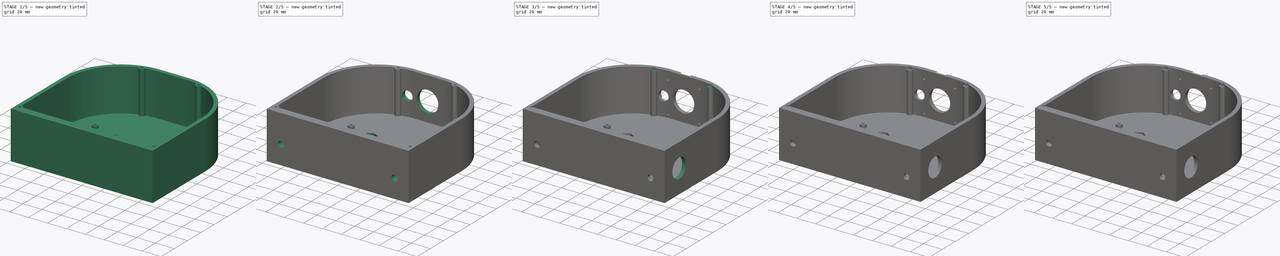
[diagram: build sequence overview — one tinted view per stage of 5, left to right]
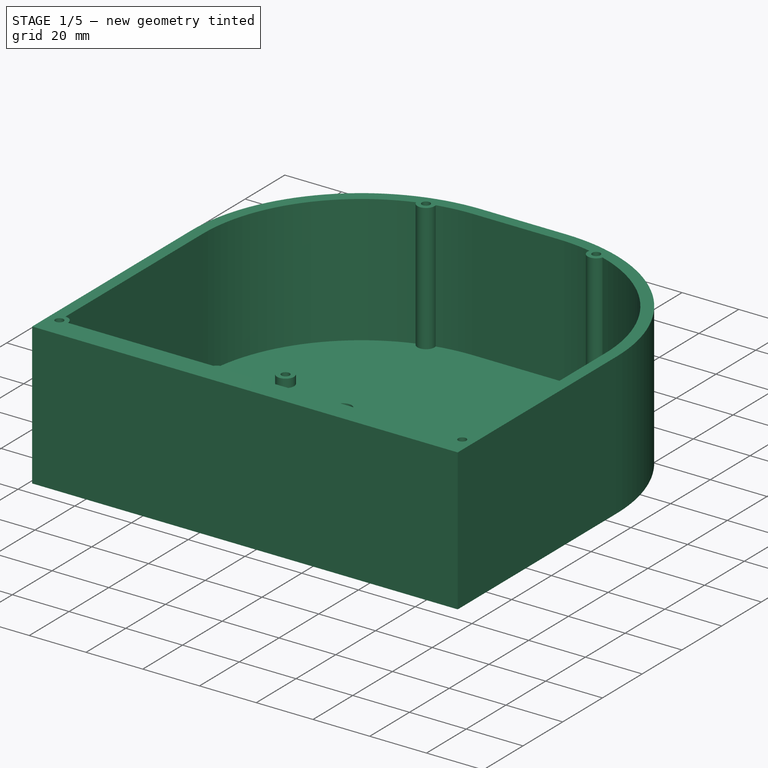
[diagram: stage 1 of 5 — iso view after this stage's code; geometry added in this stage tinted green]
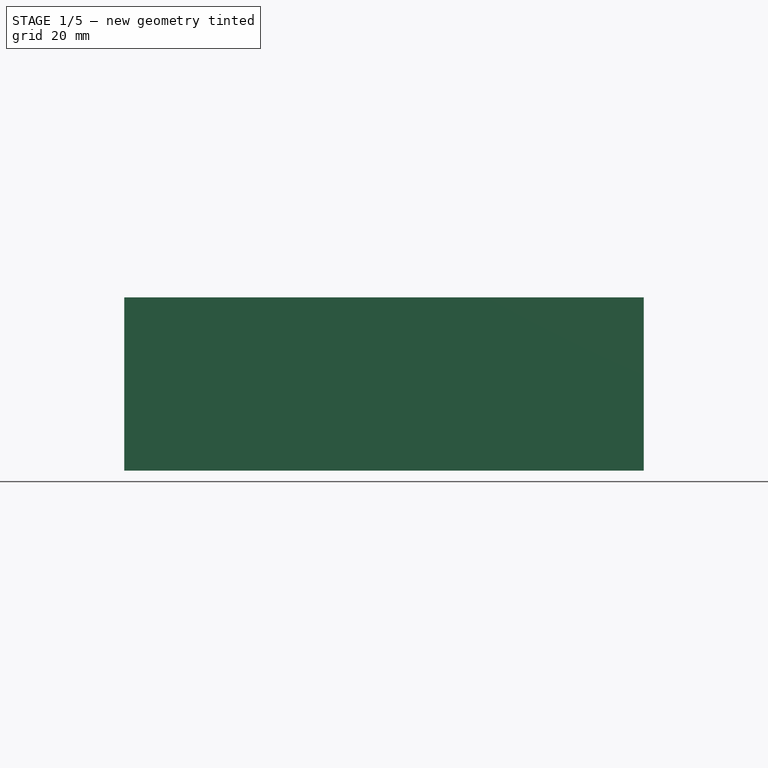
[diagram: stage 1 of 5 — front view after this stage's code; geometry added in this stage tinted green]
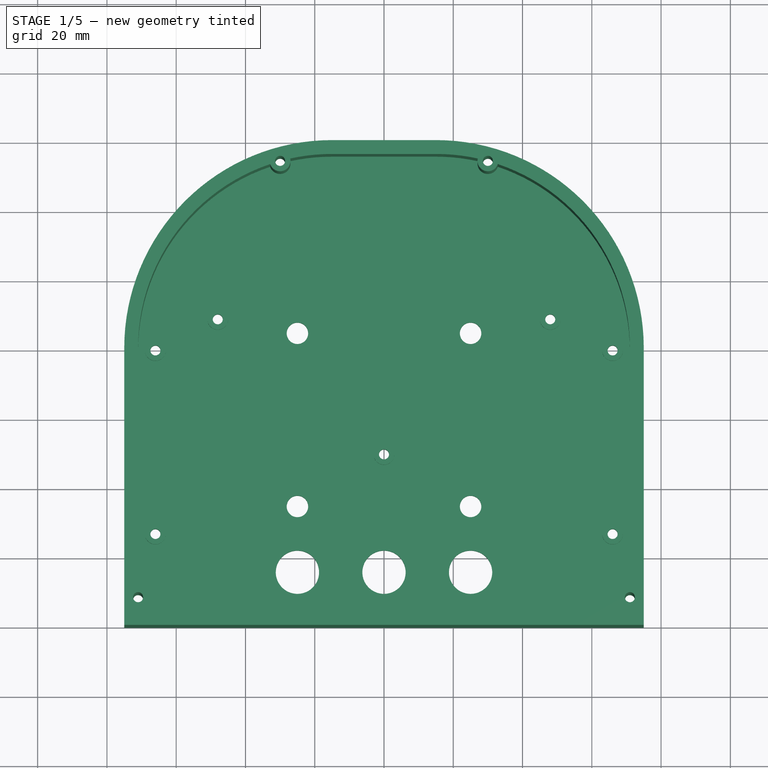
[diagram: stage 1 of 5 — top view after this stage's code; geometry added in this stage tinted green]
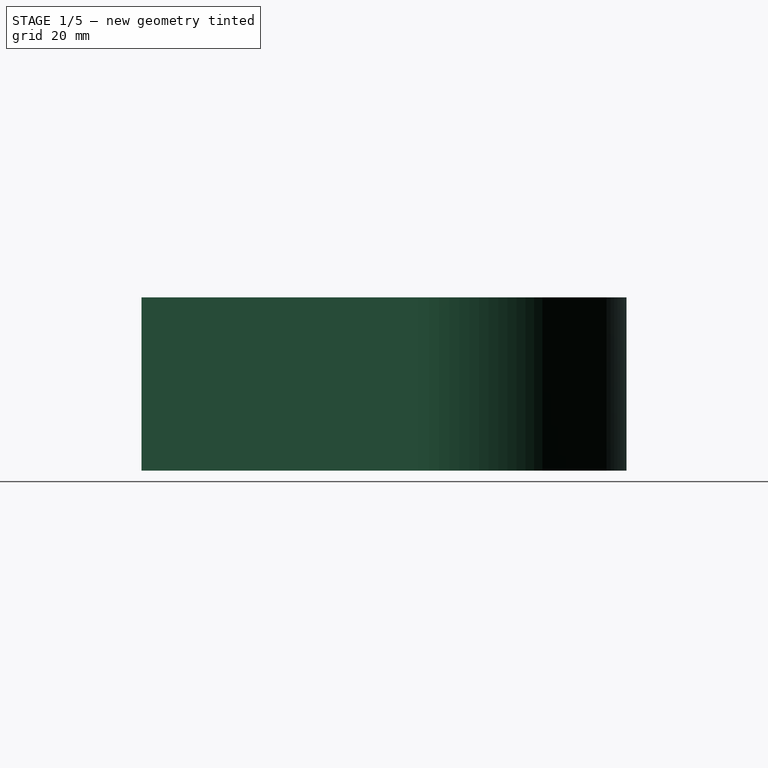
[diagram: stage 1 of 5 — right view after this stage's code; geometry added in this stage tinted green]
FCSTD DOCUMENT  (FreeCAD 0.20R)
Label: T07_threaded_enclosure
License: All rights reserved
LicenseURL: http://en.wikipedia.org/wiki/All_rights_reserved
objects: Sketcher::SketchObject×16, PartDesign::Pocket×12, PartDesign::Pad×4, PartDesign::Chamfer×2, PartDesign::Body×2
note: 54 computed .brp shape members not serialized (recipe doc carries the construction recipe); baked Part::Feature solids carry a one-line shape summary decoded from their .brp

FEATURE [Sketcher::SketchObject] Sketch
  FullyConstrained = true
  MapMode = 5
  Support = -> [XY_Plane]
  sketch-geometry (6):
    g0: ArcOfCircle CenterX=-15 CenterY=80 CenterZ=0 NormalX=0 NormalY=0 NormalZ=1 AngleXU=0 Radius=60 StartAngle=1.5708 EndAngle=3.14159
    g1: ArcOfCircle CenterX=15 CenterY=80 CenterZ=0 NormalX=0 NormalY=0 NormalZ=1 AngleXU=0 Radius=60 StartAngle=0 EndAngle=1.5708
    g2: LineSegment StartX=-75 StartY=80 StartZ=0 EndX=-75 EndY=0 EndZ=0
    g3: LineSegment StartX=-75 StartY=0 StartZ=0 EndX=75 EndY=0 EndZ=0
    g4: LineSegment StartX=75 StartY=0 StartZ=0 EndX=75 EndY=80 EndZ=0
    g5: LineSegment StartX=15 StartY=140 StartZ=0 EndX=-15 EndY=140 EndZ=0
  constraints (14):
    c: Tangent(g0,g2) = -1.5708
    c: Coincident(g2,g3)
    c: PointOnObject(g3,g-1)
    c: Coincident(g3,g4)
    c: Tangent(g1,g5) = -1.5708
    c: Symmetric(g0,g1,g-2)
    c: Symmetric(g2,g3,g-2)
    c: Tangent(g4,g1) = -1.5708
    c: Tangent(g5,g0) = -1.5708
    c: Vertical(g2)
    c: Equal(g0,g1)
    c: DistanceX(g3,g3) = 150
    c: DistanceY(g-1,g0) = 140
    c: Radius(g0) = 60
FEATURE [PartDesign::Pad] Pad
  Direction = (0,0,1)
  Length = 50
  Length2 = 10
  Profile = -> Sketch
  ReferenceAxis = -> Sketch [N_Axis]
  Type = 0
FEATURE [Sketcher::SketchObject] Sketch001
  FullyConstrained = true
  MapMode = 5
  Placement = pos=(0,0,50) rot=(0,0,1;0rad)
  Support = -> [Pad]
  sketch-geometry (12):
    g0: ArcOfCircle CenterX=-15 CenterY=80 CenterZ=0 NormalX=0 NormalY=0 NormalZ=1 AngleXU=0 Radius=56 StartAngle=1.89529 EndAngle=3.14159
    g1: ArcOfCircle CenterX=15 CenterY=80 CenterZ=0 NormalX=0 NormalY=0 NormalZ=1 AngleXU=0 Radius=56 StartAngle=0 EndAngle=1.2463
    g2: LineSegment StartX=-71 StartY=80 StartZ=0 EndX=-71 EndY=11 EndZ=0
    g3: LineSegment StartX=71 StartY=11 StartZ=0 EndX=71 EndY=80 EndZ=0
    g4: ArcOfCircle CenterX=-71 CenterY=8 CenterZ=0 NormalX=0 NormalY=0 NormalZ=1 AngleXU=0 Radius=3 StartAngle=0 EndAngle=1.5708
    g5: ArcOfCircle CenterX=71 CenterY=8 CenterZ=0 NormalX=0 NormalY=0 NormalZ=1 AngleXU=0 Radius=3 StartAngle=1.5708 EndAngle=3.14159
    g6: LineSegment StartX=68 StartY=8 StartZ=0 EndX=-68 EndY=8 EndZ=0
    g7: LineSegment StartX=15 StartY=136 StartZ=0 EndX=-15 EndY=136 EndZ=0
    g8: ArcOfCircle CenterX=-15 CenterY=80 CenterZ=0 NormalX=0 NormalY=0 NormalZ=1 AngleXU=0 Radius=56 StartAngle=1.5708 EndAngle=1.78819
    g9: ArcOfCircle CenterX=15 CenterY=80 CenterZ=0 NormalX=0 NormalY=0 NormalZ=1 AngleXU=0 Radius=56 StartAngle=1.3534 EndAngle=1.5708
    g10: ArcOfCircle CenterX=-30 CenterY=134 CenterZ=0 NormalX=0 NormalY=0 NormalZ=1 AngleXU=0 Radius=3 StartAngle=3.45419 EndAngle=6.51249
    g11: ArcOfCircle CenterX=30 CenterY=134 CenterZ=0 NormalX=0 NormalY=0 NormalZ=1 AngleXU=0 Radius=3 StartAngle=2.91229 EndAngle=5.97059
  constraints (34):
    c: Tangent(g0,g2) = -1.5708
    c: Symmetric(g0,g1,g-2)
    c: Symmetric(g2,g3,g-2)
    c: Equal(g0,g1)
    c: Tangent(g3,g1) = -1.5708
    c: Vertical(g2)
    c: DistanceX(g2,g3) = 142
    c: DistanceY(g-1,g2) = 11
    c: Radius(g0) = 56
    c: Coincident(g4,g2)
    c: Coincident(g5,g3)
    c: Coincident(g6,g5)
    c: Coincident(g6,g4)
    c: Symmetric(g4,g5,g-2)
    c: DistanceX(g2,g4) = 0
    c: Radius(g4) = 3
    c: Horizontal(g6)
    c: DistanceY(g4,g4) = 0
    c: Symmetric(g7,g7,g-2)
    c: Coincident(g8,g0)
    c: Coincident(g9,g1)
    c: Coincident(g9,g7)
    c: Equal(g0,g8)
    c: DistanceY(g-1,g7) = 136
    c: Radius(g10) = 3
    c: Equal(g10,g11)
    c: Symmetric(g10,g11,g-2)
    c: Coincident(g0,g10)
    c: Coincident(g10,g8)
    c: Coincident(g11,g1)
    c: Coincident(g9,g11)
    c: DistanceX(g10,g11) = 60
    c: DistanceY(g-1,g10) = 134
    c: Tangent(g8,g7) = -1.5708
FEATURE [PartDesign::Pocket] Pocket
  BaseFeature = -> Pad
  Direction = (0,0,-1)
  Length = 45
  Length2 = 5
  Profile = -> Sketch001
  ReferenceAxis = -> Sketch001 [N_Axis]
  Type = 0
FEATURE [Sketcher::SketchObject] Sketch002
  FullyConstrained = true
  MapMode = 5
  Placement = pos=(0,0,5) rot=(0,0,1;0rad)
  Support = -> [Pocket]
  sketch-geometry (7):
    g0: Circle CenterX=0 CenterY=50 CenterZ=0 NormalX=0 NormalY=0 NormalZ=1 AngleXU=0 Radius=3
    g1: Circle CenterX=-66 CenterY=27 CenterZ=0 NormalX=0 NormalY=0 NormalZ=1 AngleXU=0 Radius=3
    g2: Circle CenterX=66 CenterY=27 CenterZ=0 NormalX=0 NormalY=0 NormalZ=1 AngleXU=0 Radius=3
    g3: Circle CenterX=-66 CenterY=80 CenterZ=0 NormalX=0 NormalY=0 NormalZ=1 AngleXU=0 Radius=3
    g4: Circle CenterX=-48 CenterY=89 CenterZ=0 NormalX=0 NormalY=0 NormalZ=1 AngleXU=0 Radius=3
    g5: Circle CenterX=48 CenterY=89 CenterZ=0 NormalX=0 NormalY=0 NormalZ=1 AngleXU=0 Radius=3
    g6: Circle CenterX=66 CenterY=80 CenterZ=0 NormalX=0 NormalY=0 NormalZ=1 AngleXU=0 Radius=3
  constraints (18):
    c: PointOnObject(g0,g-2)
    c: Equal(g4,g5)
    c: Equal(g4,g3)
    c: Equal(g3,g1)
    c: Equal(g5,g6)
    c: Equal(g6,g2)
    c: Equal(g4,g0)
    c: Diameter(g4) = 6
    c: Symmetric(g4,g5,g-2)
    c: Symmetric(g3,g6,g-2)
    c: Symmetric(g1,g2,g-2)
    c: DistanceX(g3,g0) = 66
    c: DistanceX(g4,g0) = 48
    c: DistanceX(g1,g0) = 66
    c: DistanceY(g1,g0) = 23
    c: DistanceY(g0,g3) = 30
    c: DistanceY(g0,g4) = 39
    c: DistanceY(g-1,g0) = 50
FEATURE [PartDesign::Pad] Pad001
  BaseFeature = -> Pocket
  Direction = (0,0,1)
  Length = 3
  Length2 = 10
  Profile = -> Sketch002
  ReferenceAxis = -> Sketch002 [N_Axis]
  Type = 0
FEATURE [Sketcher::SketchObject] Sketch003
  FullyConstrained = true
  MapMode = 5
  Placement = pos=(0,0,5) rot=(0,0,1;0rad)
  Support = -> [Pad001]
  sketch-geometry (18):
    g0: Circle CenterX=0 CenterY=50 CenterZ=0 NormalX=0 NormalY=0 NormalZ=1 AngleXU=0 Radius=1.45
    g1: Circle CenterX=-66 CenterY=27 CenterZ=0 NormalX=0 NormalY=0 NormalZ=1 AngleXU=0 Radius=1.45
    g2: Circle CenterX=-66 CenterY=80 CenterZ=0 NormalX=0 NormalY=0 NormalZ=1 AngleXU=0 Radius=1.45
    g3: Circle CenterX=-48 CenterY=89 CenterZ=0 NormalX=0 NormalY=0 NormalZ=1 AngleXU=0 Radius=1.45
    g4: Circle CenterX=48 CenterY=89 CenterZ=0 NormalX=0 NormalY=0 NormalZ=1 AngleXU=0 Radius=1.45
    g5: Circle CenterX=66 CenterY=80 CenterZ=0 NormalX=0 NormalY=0 NormalZ=1 AngleXU=0 Radius=1.45
    g6: Circle CenterX=66 CenterY=27 CenterZ=0 NormalX=0 NormalY=0 NormalZ=1 AngleXU=0 Radius=1.45
    g7: Circle CenterX=-25 CenterY=85 CenterZ=0 NormalX=0 NormalY=0 NormalZ=1 AngleXU=0 Radius=3.1
    g8: Circle CenterX=25 CenterY=85 CenterZ=0 NormalX=0 NormalY=0 NormalZ=1 AngleXU=0 Radius=3.1
    g9: Circle CenterX=-25 CenterY=35 CenterZ=0 NormalX=0 NormalY=0 NormalZ=1 AngleXU=0 Radius=3.1
    g10: Circle CenterX=25 CenterY=35 CenterZ=0 NormalX=0 NormalY=0 NormalZ=1 AngleXU=0 Radius=3.1
    g11: Circle CenterX=-71 CenterY=8 CenterZ=0 NormalX=0 NormalY=0 NormalZ=1 AngleXU=0 Radius=1.45
    g12: Circle CenterX=71 CenterY=8 CenterZ=0 NormalX=0 NormalY=0 NormalZ=1 AngleXU=0 Radius=1.45
    g13: Circle CenterX=-30 CenterY=134 CenterZ=0 NormalX=0 NormalY=0 NormalZ=1 AngleXU=0 Radius=1.45
    g14: Circle CenterX=30 CenterY=134 CenterZ=0 NormalX=0 NormalY=0 NormalZ=1 AngleXU=0 Radius=1.45
    g15: Circle CenterX=0 CenterY=16 CenterZ=0 NormalX=0 NormalY=0 NormalZ=1 AngleXU=0 Radius=6.25
    g16: Circle CenterX=25 CenterY=16 CenterZ=0 NormalX=0 NormalY=0 NormalZ=1 AngleXU=0 Radius=6.25
    g17: Circle CenterX=-25 CenterY=16 CenterZ=0 NormalX=0 NormalY=0 NormalZ=1 AngleXU=0 Radius=6.25
  constraints (46):
    c: PointOnObject(g0,g-2)
    c: Symmetric(g3,g4,g-2)
    c: Symmetric(g2,g5,g-2)
    c: Symmetric(g1,g6,g-2)
    c: Equal(g3,g4)
    c: Equal(g3,g2)
    c: Equal(g2,g1)
    c: Equal(g4,g5)
    c: Equal(g5,g6)
    c: Equal(g3,g0)
    c: Diameter(g3) = 2.9
    c: DistanceX(g1,g0) = 66
    c: DistanceX(g2,g0) = 66
    c: DistanceX(g3,g0) = 48
    c: DistanceY(g1,g0) = 23
    c: DistanceY(g0,g2) = 30
    c: DistanceY(g0,g3) = 39
    c: DistanceY(g-1,g0) = 50
    c: Symmetric(g9,g10,g-2)
    c: Symmetric(g7,g8,g-2)
    c: Equal(g9,g7)
    c: Equal(g7,g8)
    c: Equal(g8,g10)
    c: DistanceX(g9,g10) = 50
    c: DistanceX(g7,g8) = 50
    c: Diameter(g9) = 6.2
    c: DistanceY(g9,g7) = 50
    c: DistanceY(g-1,g9) = 35
    c: Symmetric(g13,g14,g-2)
    c: Symmetric(g11,g12,g-2)
    c: DistanceY(g-1,g11) = 8
    c: DistanceY(g-1,g13) = 134
    c: DistanceX(g13,g14) = 60
    c: DistanceX(g11,g12) = 142
    c: Equal(g11,g12)
    c: Equal(g11,g13)
    c: Equal(g13,g14)
    c: Equal(g3,g11)
    c: PointOnObject(g15,g-2)
    c: Symmetric(g17,g16,g-2)
    c: Diameter(g17) = 12.5
    c: Equal(g17,g15)
    c: Equal(g15,g16)
    c: DistanceY(g15,g17) = 0
    c: DistanceY(g-1,g15) = 16
    c: DistanceX(g17,g16) = 50
FEATURE [PartDesign::Pocket] Pocket001
  BaseFeature = -> Pad001
  Direction = (0,0,-1)
  Length = 5
  Length2 = 5
  Midplane = true
  Profile = -> Sketch003
  ReferenceAxis = -> Sketch003 [N_Axis]
  Type = 1
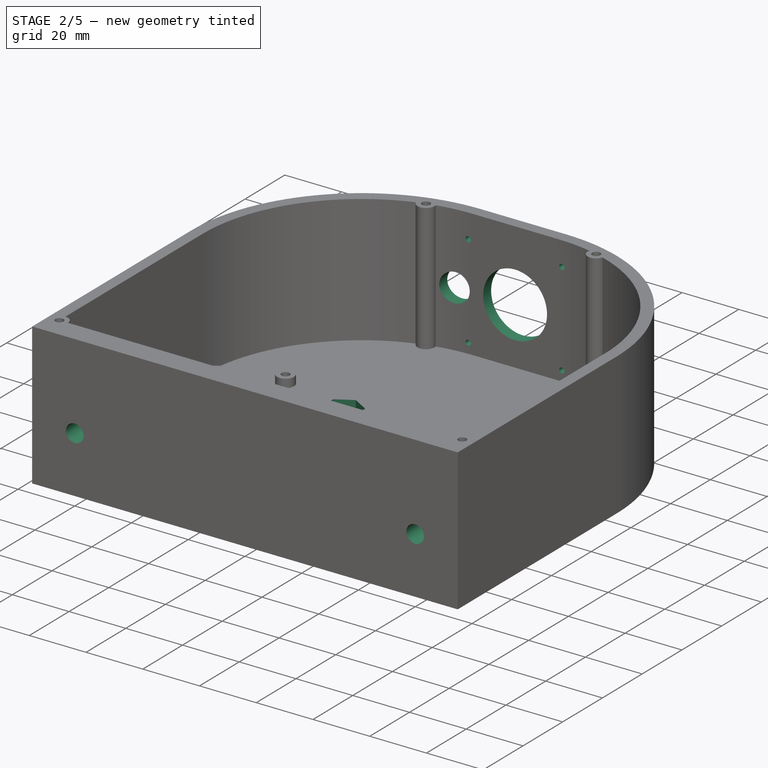
[diagram: stage 2 of 5 — iso view after this stage's code; geometry added in this stage tinted green]
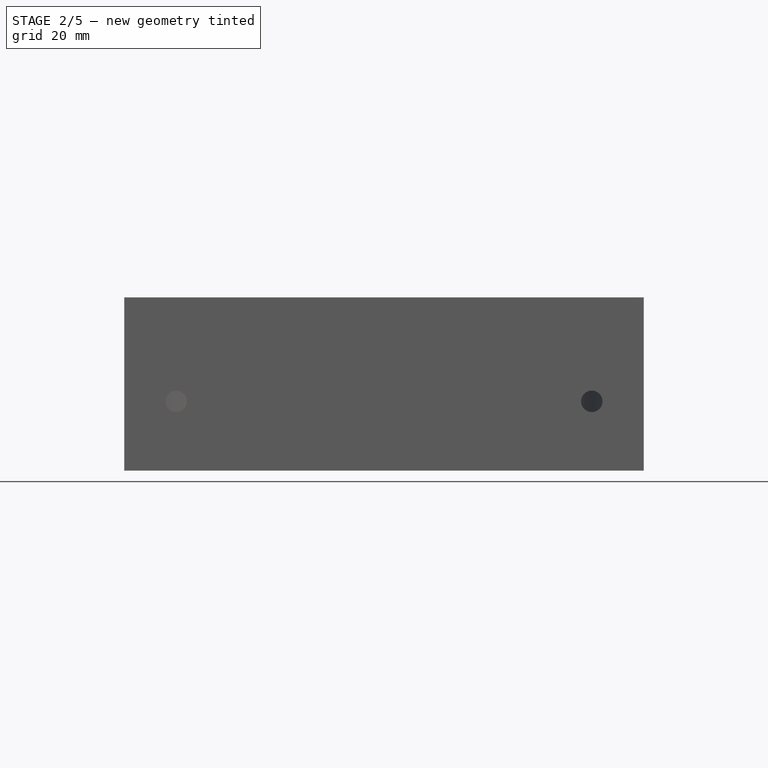
[diagram: stage 2 of 5 — front view after this stage's code; geometry added in this stage tinted green]
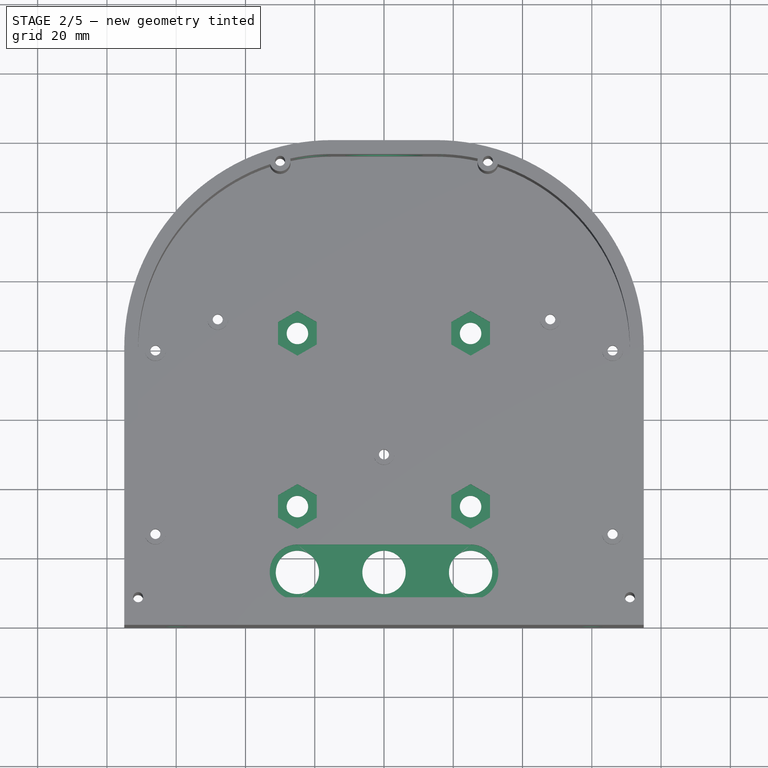
[diagram: stage 2 of 5 — top view after this stage's code; geometry added in this stage tinted green]
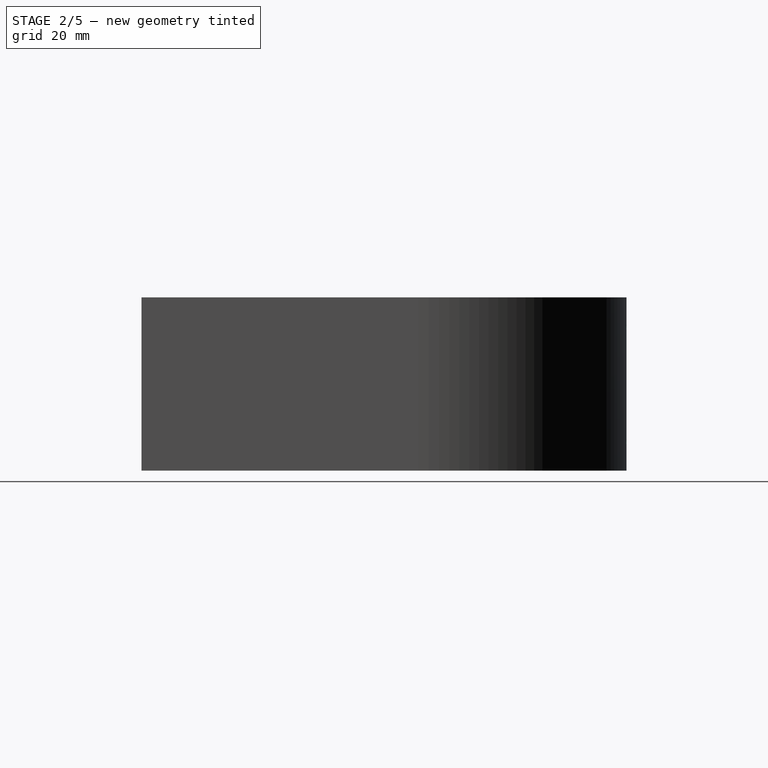
[diagram: stage 2 of 5 — right view after this stage's code; geometry added in this stage tinted green]
FEATURE [Sketcher::SketchObject] Sketch004
  FullyConstrained = true
  MapMode = 5
  Placement = pos=(0,0,5) rot=(0,0,1;0rad)
  Support = -> [Pocket001]
  sketch-geometry (32):
    g0: LineSegment StartX=-19.4 StartY=38.2332 StartZ=0 EndX=-25 EndY=41.4663 EndZ=0
    g1: LineSegment StartX=-25 StartY=41.4663 StartZ=0 EndX=-30.6 EndY=38.2332 EndZ=0
    g2: LineSegment StartX=-30.6 StartY=38.2332 StartZ=0 EndX=-30.6 EndY=31.7668 EndZ=0
    g3: LineSegment StartX=-30.6 StartY=31.7668 StartZ=0 EndX=-25 EndY=28.5337 EndZ=0
    g4: LineSegment StartX=-25 StartY=28.5337 StartZ=0 EndX=-19.4 EndY=31.7668 EndZ=0
    g5: LineSegment StartX=-19.4 StartY=31.7668 StartZ=0 EndX=-19.4 EndY=38.2332 EndZ=0
    g6: Circle CenterX=-25 CenterY=35 CenterZ=0 NormalX=0 NormalY=0 NormalZ=1 AngleXU=0 Radius=6.46632
    g7: LineSegment StartX=30.6 StartY=31.7668 StartZ=0 EndX=30.6 EndY=38.2332 EndZ=0
    g8: LineSegment StartX=30.6 StartY=38.2332 StartZ=0 EndX=25 EndY=41.4663 EndZ=0
    g9: LineSegment StartX=25 StartY=41.4663 StartZ=0 EndX=19.4 EndY=38.2332 EndZ=0
    g10: LineSegment StartX=19.4 StartY=38.2332 StartZ=0 EndX=19.4 EndY=31.7668 EndZ=0
    g11: LineSegment StartX=19.4 StartY=31.7668 StartZ=0 EndX=25 EndY=28.5337 EndZ=0
    g12: LineSegment StartX=25 StartY=28.5337 StartZ=0 EndX=30.6 EndY=31.7668 EndZ=0
    g13: Circle CenterX=25 CenterY=35 CenterZ=0 NormalX=0 NormalY=0 NormalZ=1 AngleXU=0 Radius=6.46632
    g14: LineSegment StartX=-19.4 StartY=81.7668 StartZ=0 EndX=-19.4 EndY=88.2332 EndZ=0
    g15: LineSegment StartX=-19.4 StartY=88.2332 StartZ=0 EndX=-25 EndY=91.4663 EndZ=0
    g16: LineSegment StartX=-25 StartY=91.4663 StartZ=0 EndX=-30.6 EndY=88.2332 EndZ=0
    g17: LineSegment StartX=-30.6 StartY=88.2332 StartZ=0 EndX=-30.6 EndY=81.7668 EndZ=0
    g18: LineSegment StartX=-30.6 StartY=81.7668 StartZ=0 EndX=-25 EndY=78.5337 EndZ=0
    g19: LineSegment StartX=-25 StartY=78.5337 StartZ=0 EndX=-19.4 EndY=81.7668 EndZ=0
    g20: Circle CenterX=-25 CenterY=85 CenterZ=0 NormalX=0 NormalY=0 NormalZ=1 AngleXU=0 Radius=6.46632
    g21: LineSegment StartX=30.6 StartY=81.7668 StartZ=0 EndX=30.6 EndY=88.2332 EndZ=0
    g22: LineSegment StartX=30.6 StartY=88.2332 StartZ=0 EndX=25 EndY=91.4663 EndZ=0
    g23: LineSegment StartX=25 StartY=91.4663 StartZ=0 EndX=19.4 EndY=88.2332 EndZ=0
    g24: LineSegment StartX=19.4 StartY=88.2332 StartZ=0 EndX=19.4 EndY=81.7668 EndZ=0
    g25: LineSegment StartX=19.4 StartY=81.7668 StartZ=0 EndX=25 EndY=78.5337 EndZ=0
    g26: LineSegment StartX=25 StartY=78.5337 StartZ=0 EndX=30.6 EndY=81.7668 EndZ=0
    g27: Circle CenterX=25 CenterY=85 CenterZ=0 NormalX=0 NormalY=0 NormalZ=1 AngleXU=0 Radius=6.46632
    g28: ArcOfCircle CenterX=-25 CenterY=16 CenterZ=0 NormalX=0 NormalY=0 NormalZ=1 AngleXU=0 Radius=8 StartAngle=1.5708 EndAngle=4.71239
    g29: ArcOfCircle CenterX=25 CenterY=16 CenterZ=0 NormalX=0 NormalY=0 NormalZ=1 AngleXU=0 Radius=8 StartAngle=4.71239 EndAngle=7.85398
    g30: LineSegment StartX=-25 StartY=8 StartZ=0 EndX=25 EndY=8 EndZ=0
    g31: LineSegment StartX=25 StartY=24 StartZ=0 EndX=-25 EndY=24 EndZ=0
  constraints (75):
    c: Coincident(g0,g1)
    c: Coincident(g1,g2)
    c: Coincident(g2,g3)
    c: Coincident(g3,g4)
    c: Coincident(g4,g5)
    c: Coincident(g5,g0)
    c: Equal(g0, g1-g5) x5
    c: PointOnObject(g0,g6)
    c: PointOnObject(g1,g6)
    c: PointOnObject(g2,g6)
    c: PointOnObject(g3,g6)
    c: PointOnObject(g4,g6)
    c: PointOnObject(g5,g6)
    c: Coincident(g7,g8)
    c: Coincident(g8,g9)
    c: Coincident(g9,g10)
    c: Coincident(g10,g11)
    c: Coincident(g11,g12)
    c: Coincident(g12,g7)
    c: Equal(g7, g8-g12) x5
    c: PointOnObject(g7,g13)
    c: PointOnObject(g8,g13)
    c: PointOnObject(g9,g13)
    c: PointOnObject(g10,g13)
    c: PointOnObject(g11,g13)
    c: PointOnObject(g12,g13)
    c: Coincident(g14,g15)
    c: Coincident(g15,g16)
    c: Coincident(g16,g17)
    c: Coincident(g17,g18)
    c: Coincident(g18,g19)
    c: Coincident(g19,g14)
    c: Equal(g14, g15-g19) x5
    c: PointOnObject(g14,g20)
    c: PointOnObject(g15,g20)
    c: PointOnObject(g16,g20)
    c: PointOnObject(g17,g20)
    c: PointOnObject(g18,g20)
    c: PointOnObject(g19,g20)
    c: Coincident(g21,g22)
    c: Coincident(g22,g23)
    c: Coincident(g23,g24)
    c: Coincident(g24,g25)
    c: Coincident(g25,g26)
    c: Coincident(g26,g21)
    c: Equal(g21, g22-g26) x5
    c: PointOnObject(g21,g27)
    c: PointOnObject(g22,g27)
    c: PointOnObject(g23,g27)
    c: PointOnObject(g24,g27)
    c: PointOnObject(g25,g27)
    c: PointOnObject(g26,g27)
    c: Symmetric(g20,g27,g-2)
    c: Symmetric(g6,g13,g-2)
    c: Equal(g6,g20)
    c: Equal(g20,g27)
    c: Equal(g27,g13)
    c: Vertical(g17)
    c: Vertical(g24)
    c: Vertical(g2)
    c: Vertical(g10)
    c: DistanceX(g20,g27) = 50
    c: DistanceX(g6,g13) = 50
    c: DistanceX(g1,g0) = 11.2
    c: DistanceY(g6,g20) = 50
    c: DistanceY(g-1,g6) = 35
    c: Tangent(g28,g30) = -1.5708
    c: Tangent(g30,g29) = -1.5708
    c: Tangent(g29,g31) = -1.5708
    c: Tangent(g31,g28) = -1.5708
    c: Equal(g28,g29)
    c: DistanceX(g28,g29) = 50
    c: Symmetric(g28,g29,g-2)
    c: DistanceY(g-1,g28) = 16
    c: Diameter(g29) = 16
FEATURE [PartDesign::Pocket] Pocket002
  BaseFeature = -> Pocket001
  Direction = (0,0,-1)
  Length = 3
  Length2 = 5
  Profile = -> Sketch004
  ReferenceAxis = -> Sketch004 [N_Axis]
  Type = 0
FEATURE [Sketcher::SketchObject] Sketch005
  FullyConstrained = true
  MapMode = 5
  Placement = pos=(0,140,0) rot=(0,0.707107,0.707107;3.14159rad)
  Support = -> [Pocket002]
  sketch-geometry (6):
    g0: Circle CenterX=0 CenterY=25 CenterZ=0 NormalX=0 NormalY=0 NormalZ=1 AngleXU=0 Radius=11.25
    g1: Circle CenterX=-16.5 CenterY=41.5 CenterZ=0 NormalX=0 NormalY=0 NormalZ=1 AngleXU=0 Radius=0.95
    g2: Circle CenterX=16.5 CenterY=41.5 CenterZ=0 NormalX=0 NormalY=0 NormalZ=1 AngleXU=0 Radius=0.95
    g3: Circle CenterX=-16.5 CenterY=8.5 CenterZ=0 NormalX=0 NormalY=0 NormalZ=1 AngleXU=0 Radius=0.95
    g4: Circle CenterX=16.5 CenterY=8.5 CenterZ=0 NormalX=0 NormalY=0 NormalZ=1 AngleXU=0 Radius=0.95
    g5: Circle CenterX=21 CenterY=25 CenterZ=0 NormalX=0 NormalY=0 NormalZ=1 AngleXU=0 Radius=5
  constraints (16):
    c: PointOnObject(g0,g-2)
    c: Diameter(g0) = 22.5
    c: DistanceY(g-1,g0) = 25
    c: Symmetric(g1,g2,g-2)
    c: Symmetric(g3,g4,g-2)
    c: DistanceX(g1,g2) = 33
    c: DistanceX(g3,g4) = 33
    c: DistanceY(g3,g1) = 33
    c: DistanceY(g0,g1) = 16.5
    c: Diameter(g1) = 1.9
    c: Equal(g1,g2)
    c: Equal(g1,g3)
    c: Equal(g3,g4)
    c: Diameter(g5) = 10
    c: DistanceX(g0,g5) = 21
    c: DistanceY(g0,g5) = 0
FEATURE [PartDesign::Pocket] Pocket003
  BaseFeature = -> Pocket002
  Direction = (0,-1,2e-16)
  Length = 6
  Length2 = 5
  Profile = -> Sketch005
  ReferenceAxis = -> Sketch005 [N_Axis]
  Type = 0
FEATURE [Sketcher::SketchObject] Sketch006
  FullyConstrained = true
  MapMode = 5
  Placement = pos=(0,0,0) rot=(1,0,0;1.5708rad)
  Support = -> [Pocket003]
  sketch-geometry (2):
    g0: Circle CenterX=-60 CenterY=20 CenterZ=0 NormalX=0 NormalY=0 NormalZ=1 AngleXU=0 Radius=3.1
    g1: Circle CenterX=60 CenterY=20 CenterZ=0 NormalX=0 NormalY=0 NormalZ=1 AngleXU=0 Radius=3.1
  constraints (5):
    c: Symmetric(g0,g1,g-2)
    c: Equal(g0,g1)
    c: Diameter(g0) = 6.2
    c: DistanceX(g0,g1) = 120
    c: DistanceY(g-1,g0) = 20
FEATURE [PartDesign::Pocket] Pocket004
  BaseFeature = -> Pocket003
  Direction = (0,1,-2e-16)
  Length = 10
  Length2 = 5
  Profile = -> Sketch006
  ReferenceAxis = -> Sketch006 [N_Axis]
  Type = 0
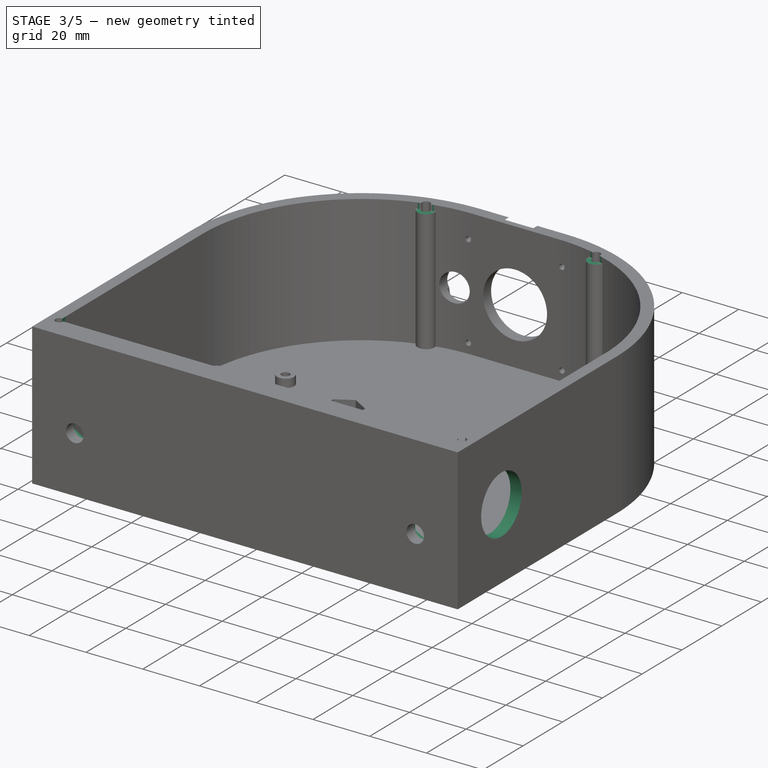
[diagram: stage 3 of 5 — iso view after this stage's code; geometry added in this stage tinted green]
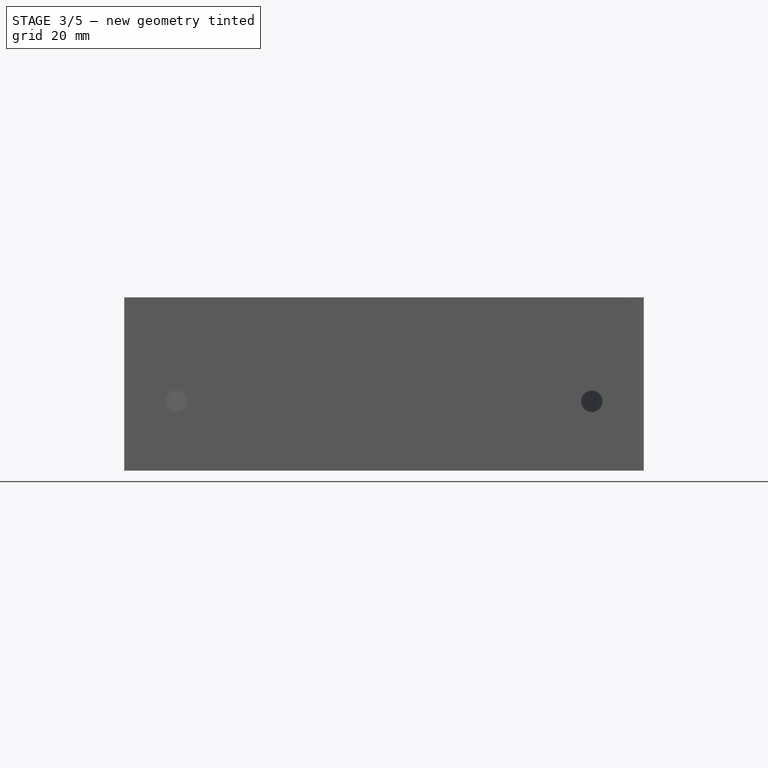
[diagram: stage 3 of 5 — front view after this stage's code; geometry added in this stage tinted green]
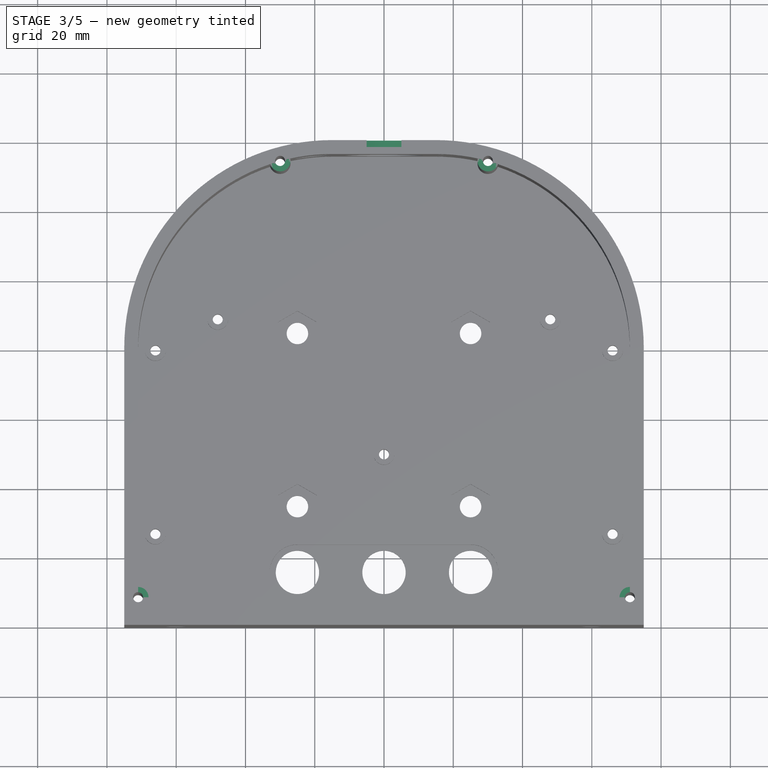
[diagram: stage 3 of 5 — top view after this stage's code; geometry added in this stage tinted green]
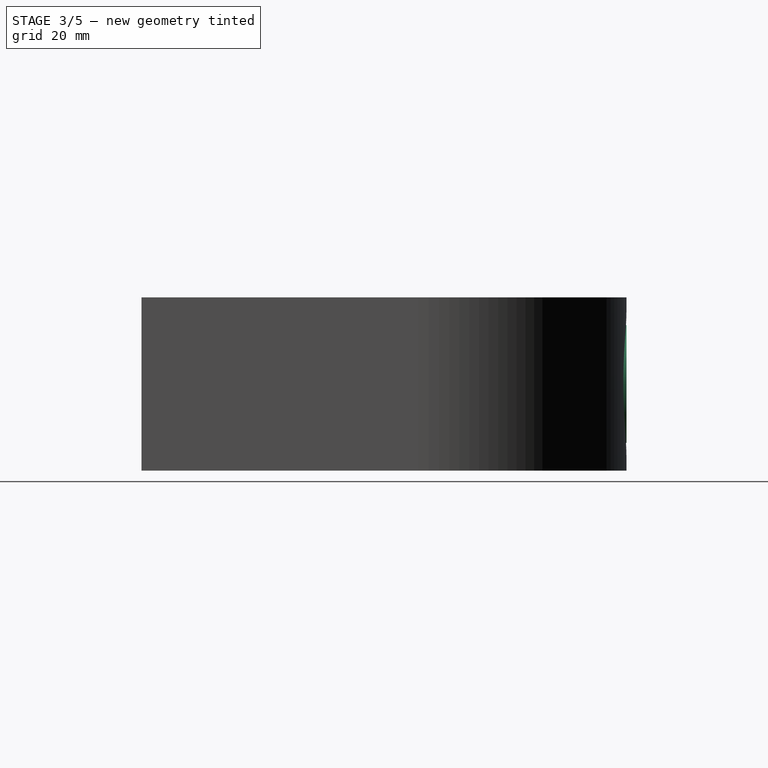
[diagram: stage 3 of 5 — right view after this stage's code; geometry added in this stage tinted green]
FEATURE [Sketcher::SketchObject] Sketch007
  FullyConstrained = true
  MapMode = 5
  Placement = pos=(0,8,0) rot=(0,0.707107,0.707107;3.14159rad)
  Support = -> [Pocket004]
  sketch-geometry (14):
    g0: LineSegment StartX=-60 StartY=13.5337 StartZ=0 EndX=-54.4 EndY=16.7668 EndZ=0
    g1: LineSegment StartX=-54.4 StartY=16.7668 StartZ=0 EndX=-54.4 EndY=23.2332 EndZ=0
    g2: LineSegment StartX=-54.4 StartY=23.2332 StartZ=0 EndX=-60 EndY=26.4663 EndZ=0
    g3: LineSegment StartX=-60 StartY=26.4663 StartZ=0 EndX=-65.6 EndY=23.2332 EndZ=0
    g4: LineSegment StartX=-65.6 StartY=23.2332 StartZ=0 EndX=-65.6 EndY=16.7668 EndZ=0
    g5: LineSegment StartX=-65.6 StartY=16.7668 StartZ=0 EndX=-60 EndY=13.5337 EndZ=0
    g6: Circle CenterX=-60 CenterY=20 CenterZ=0 NormalX=0 NormalY=0 NormalZ=1 AngleXU=0 Radius=6.46632
    g7: LineSegment StartX=65.6 StartY=16.7668 StartZ=0 EndX=65.6 EndY=23.2332 EndZ=0
    g8: LineSegment StartX=65.6 StartY=23.2332 StartZ=0 EndX=60 EndY=26.4663 EndZ=0
    g9: LineSegment StartX=60 StartY=26.4663 StartZ=0 EndX=54.4 EndY=23.2332 EndZ=0
    g10: LineSegment StartX=54.4 StartY=23.2332 StartZ=0 EndX=54.4 EndY=16.7668 EndZ=0
    g11: LineSegment StartX=54.4 StartY=16.7668 StartZ=0 EndX=60 EndY=13.5337 EndZ=0
    g12: LineSegment StartX=60 StartY=13.5337 StartZ=0 EndX=65.6 EndY=16.7668 EndZ=0
    g13: Circle CenterX=60 CenterY=20 CenterZ=0 NormalX=0 NormalY=0 NormalZ=1 AngleXU=0 Radius=6.46632
  constraints (33):
    c: Coincident(g0,g1)
    c: Coincident(g1,g2)
    c: Coincident(g2,g3)
    c: Coincident(g3,g4)
    c: Coincident(g4,g5)
    c: Coincident(g5,g0)
    c: Equal(g0, g1-g5) x5
    c: PointOnObject(g0,g6)
    c: PointOnObject(g1,g6)
    c: PointOnObject(g2,g6)
    c: PointOnObject(g3,g6)
    c: PointOnObject(g4,g6)
    c: PointOnObject(g5,g6)
    c: Coincident(g7,g8)
    c: Coincident(g8,g9)
    c: Coincident(g9,g10)
    c: Coincident(g10,g11)
    c: Coincident(g11,g12)
    c: Coincident(g12,g7)
    c: Equal(g7, g8-g12) x5
    c: PointOnObject(g7,g13)
    c: PointOnObject(g8,g13)
    c: PointOnObject(g9,g13)
    c: PointOnObject(g10,g13)
    c: PointOnObject(g11,g13)
    c: PointOnObject(g12,g13)
    c: Vertical(g10)
    c: Vertical(g1)
    c: Symmetric(g6,g13,g-2)
    c: DistanceX(g9,g7) = 11.2
    c: DistanceX(g6,g13) = 120
    c: DistanceY(g-1,g6) = 20
    c: Equal(g13,g6)
FEATURE [PartDesign::Pocket] Pocket005
  BaseFeature = -> Pocket004
  Direction = (0,-1,2e-16)
  Length = 4
  Length2 = 5
  Profile = -> Sketch007
  ReferenceAxis = -> Sketch007 [N_Axis]
  Type = 0
FEATURE [Sketcher::SketchObject] Sketch008
  FullyConstrained = true
  MapMode = 5
  Placement = pos=(0,0,50) rot=(0,0,1;0rad)
  Support = -> [Pocket005]
  sketch-geometry (6):
    g0: ArcOfCircle CenterX=-15 CenterY=80 CenterZ=0 NormalX=0 NormalY=0 NormalZ=1 AngleXU=0 Radius=56 StartAngle=1.5708 EndAngle=3.14159
    g1: ArcOfCircle CenterX=15 CenterY=80 CenterZ=0 NormalX=0 NormalY=0 NormalZ=1 AngleXU=0 Radius=56 StartAngle=0 EndAngle=1.5708
    g2: LineSegment StartX=-15 StartY=136 StartZ=0 EndX=15 EndY=136 EndZ=0
    g3: LineSegment StartX=-71 StartY=80 StartZ=0 EndX=-71 EndY=8 EndZ=0
    g4: LineSegment StartX=-71 StartY=8 StartZ=0 EndX=71 EndY=8 EndZ=0
    g5: LineSegment StartX=71 StartY=8 StartZ=0 EndX=71 EndY=80 EndZ=0
  constraints (14):
    c: Tangent(g0,g2) = 1.5708
    c: Tangent(g0,g3) = -1.5708
    c: Coincident(g3,g4)
    c: Coincident(g4,g5)
    c: Vertical(g5)
    c: Symmetric(g3,g4,g-2)
    c: Symmetric(g0,g1,g-2)
    c: Tangent(g5,g1) = -1.5708
    c: Tangent(g2,g1) = 1.5708
    c: Vertical(g3)
    c: DistanceY(g-1,g3) = 8
    c: DistanceY(g-1,g0) = 136
    c: DistanceX(g3,g4) = 142
    c: Radius(g0) = 56
FEATURE [PartDesign::Pocket] Pocket006
  BaseFeature = -> Pocket005
  Direction = (0,0,-1)
  Length = 2
  Length2 = 5
  Profile = -> Sketch008
  ReferenceAxis = -> Sketch008 [N_Axis]
  Type = 0
FEATURE [PartDesign::Body] Body001  label="top"
  Group = -> [Sketch009,Pad002,Sketch010,Pad003,Sketch011,Pocket007,Sketch012,Pocket008,Chamfer,Chamfer001]
  Origin = -> Origin001
  Placement = pos=(0,0,50) rot=(0,0,1;0rad)
  Tip = -> Chamfer001
FEATURE [Sketcher::SketchObject] Sketch013
  FullyConstrained = true
  MapMode = 5
  Placement = pos=(0,140,0) rot=(0,0.707107,0.707107;3.14159rad)
  Support = -> [Pocket006]
  sketch-geometry (2):
    g0: Circle CenterX=0 CenterY=25 CenterZ=0 NormalX=0 NormalY=0 NormalZ=1 AngleXU=0 Radius=17
    g1: Circle CenterX=0 CenterY=25 CenterZ=0 NormalX=0 NormalY=0 NormalZ=1 AngleXU=0 Radius=25.5
  constraints (5):
    c: PointOnObject(g0,g-2)
    c: Coincident(g1,g0)
    c: Diameter(g0) = 34
    c: Diameter(g1) = 51
    c: DistanceY(g-1,g0) = 25
FEATURE [PartDesign::Pocket] Pocket009
  BaseFeature = -> Pocket006
  Direction = (0,-1,2e-16)
  Length = 2
  Length2 = 5
  Profile = -> Sketch013
  ReferenceAxis = -> Sketch013 [N_Axis]
  Type = 0
FEATURE [Sketcher::SketchObject] Sketch014
  FullyConstrained = true
  MapMode = 5
  Placement = pos=(75,0,0) rot=(0.57735,0.57735,0.57735;2.0944rad)
  Support = -> [Pocket009]
  sketch-geometry (1):
    g0: Circle CenterX=22 CenterY=25 CenterZ=0 NormalX=0 NormalY=0 NormalZ=1 AngleXU=0 Radius=10.2
  constraints (3):
    c: Diameter(g0) = 20.4
    c: DistanceY(g-1,g0) = 25
    c: DistanceX(g-1,g0) = 22
FEATURE [PartDesign::Pocket] Pocket010
  BaseFeature = -> Pocket009
  Direction = (-1,0,0)
  Length = 6
  Length2 = 5
  Profile = -> Sketch014
  ReferenceAxis = -> Sketch014 [N_Axis]
  Type = 0
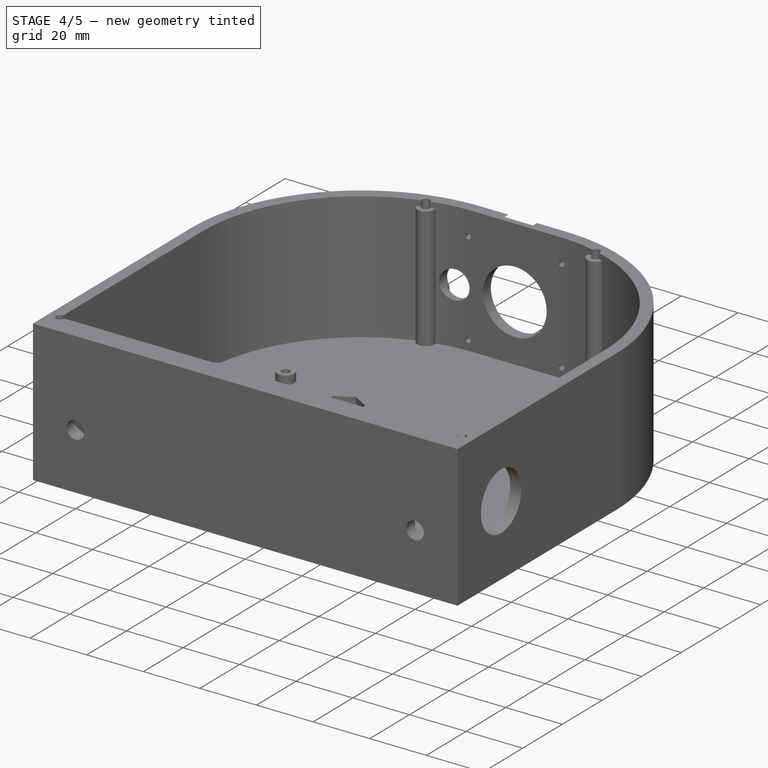
[diagram: stage 4 of 5 — iso view after this stage's code; geometry added in this stage tinted green]
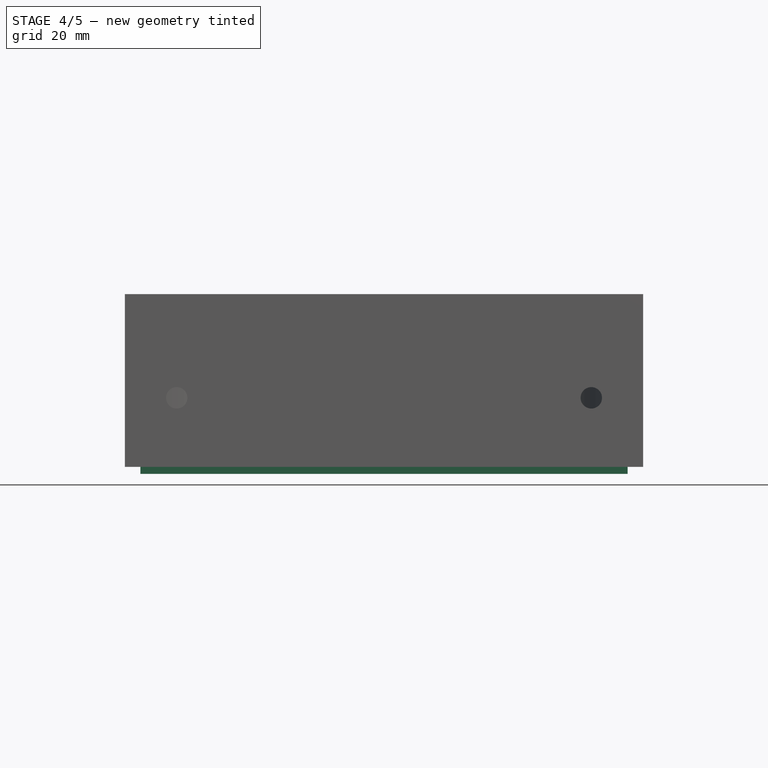
[diagram: stage 4 of 5 — front view after this stage's code; geometry added in this stage tinted green]
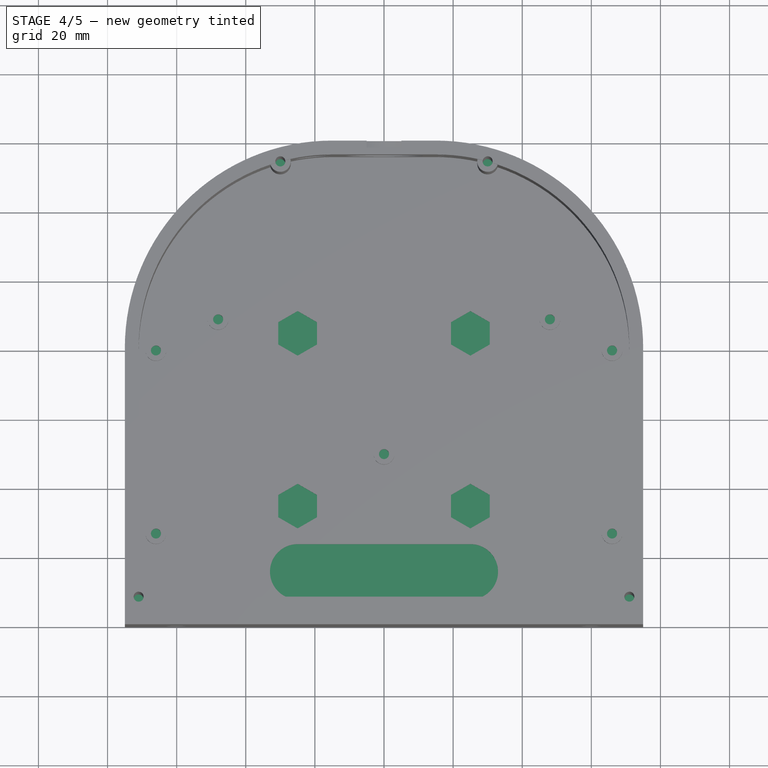
[diagram: stage 4 of 5 — top view after this stage's code; geometry added in this stage tinted green]
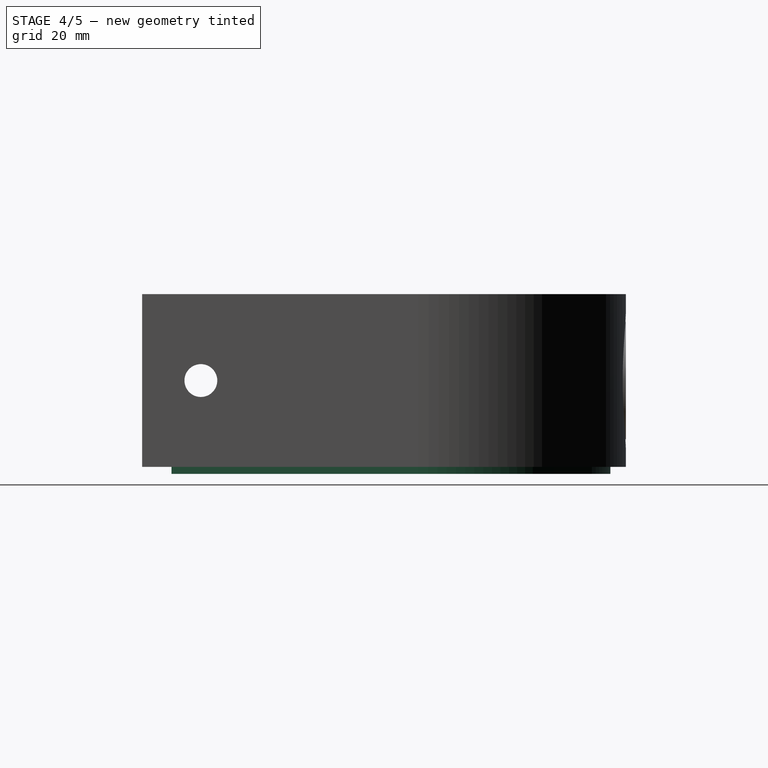
[diagram: stage 4 of 5 — right view after this stage's code; geometry added in this stage tinted green]
FEATURE [Sketcher::SketchObject] Sketch009
  FullyConstrained = true
  MapMode = 5
  Support = -> [XY_Plane001]
  sketch-geometry (6):
    g0: ArcOfCircle CenterX=-15 CenterY=80 CenterZ=0 NormalX=0 NormalY=0 NormalZ=1 AngleXU=0 Radius=60 StartAngle=1.5708 EndAngle=3.14159
    g1: ArcOfCircle CenterX=15 CenterY=80 CenterZ=0 NormalX=0 NormalY=0 NormalZ=1 AngleXU=0 Radius=60 StartAngle=-8.464e-13 EndAngle=1.5708
    g2: LineSegment StartX=-15 StartY=140 StartZ=0 EndX=15 EndY=140 EndZ=0
    g3: LineSegment StartX=-75 StartY=80 StartZ=0 EndX=-75 EndY=0 EndZ=0
    g4: LineSegment StartX=-75 StartY=0 StartZ=0 EndX=75 EndY=0 EndZ=0
    g5: LineSegment StartX=75 StartY=0 StartZ=0 EndX=75 EndY=80 EndZ=0
  constraints (14):
    c: Tangent(g0,g3) = -1.5708
    c: Coincident(g3,g4)
    c: PointOnObject(g4,g-1)
    c: Coincident(g4,g5)
    c: Symmetric(g0,g1,g-2)
    c: Symmetric(g3,g4,g-2)
    c: DistanceX(g3,g4) = 150
    c: Tangent(g2,g0) = 1.5708
    c: Tangent(g2,g1) = 1.5708
    c: Tangent(g5,g1) = -1.5708
    c: DistanceY(g-1,g0) = 140
    c: Equal(g0,g1)
    c: Radius(g0) = 60
    c: Vertical(g3)
FEATURE [PartDesign::Pad] Pad002
  Direction = (0,0,1)
  Length = 3
  Length2 = 10
  Profile = -> Sketch009
  ReferenceAxis = -> Sketch009 [N_Axis]
  Type = 0
FEATURE [Sketcher::SketchObject] Sketch010
  FullyConstrained = true
  MapMode = 5
  Placement = pos=(0,0,0) rot=(1,0,0;3.14159rad)
  Support = -> [Pad002]
  sketch-geometry (6):
    g0: ArcOfCircle CenterX=-15 CenterY=-80 CenterZ=0 NormalX=0 NormalY=0 NormalZ=1 AngleXU=0 Radius=55.5 StartAngle=3.14159 EndAngle=4.71239
    g1: ArcOfCircle CenterX=15 CenterY=-80 CenterZ=0 NormalX=0 NormalY=0 NormalZ=1 AngleXU=0 Radius=55.5 StartAngle=4.71239 EndAngle=6.28319
    g2: LineSegment StartX=-15 StartY=-135.5 StartZ=0 EndX=15 EndY=-135.5 EndZ=0
    g3: LineSegment StartX=-70.5 StartY=-80 StartZ=0 EndX=-70.5 EndY=-8.5 EndZ=0
    g4: LineSegment StartX=-70.5 StartY=-8.5 StartZ=0 EndX=70.5 EndY=-8.5 EndZ=0
    g5: LineSegment StartX=70.5 StartY=-8.5 StartZ=0 EndX=70.5 EndY=-80 EndZ=0
  constraints (14):
    c: Tangent(g0,g3) = 1.5708
    c: Coincident(g3,g4)
    c: Coincident(g4,g5)
    c: Tangent(g2,g0) = -1.5708
    c: Tangent(g2,g1) = -1.5708
    c: Tangent(g5,g1) = 1.5708
    c: Equal(g0,g1)
    c: Symmetric(g0,g1,g-2)
    c: Symmetric(g3,g4,g-2)
    c: Vertical(g3)
    c: DistanceY(g1,g-1) = 135.5
    c: DistanceY(g4,g-1) = 8.5
    c: DistanceX(g3,g4) = 141
    c: Radius(g0) = 55.5
FEATURE [PartDesign::Pad] Pad003
  BaseFeature = -> Pad002
  Direction = (0,0,-1)
  Length = 2
  Length2 = 10
  Profile = -> Sketch010
  ReferenceAxis = -> Sketch010 [N_Axis]
  Type = 0
FEATURE [Sketcher::SketchObject] Sketch015
  FullyConstrained = true
  MapMode = 5
  Placement = pos=(-75,0,0) rot=(0.57735,-0.57735,-0.57735;2.0944rad)
  Support = -> [Pocket010]
  sketch-geometry (1):
    g0: Circle CenterX=-17 CenterY=25 CenterZ=0 NormalX=0 NormalY=0 NormalZ=1 AngleXU=0 Radius=4.75
  constraints (3):
    c: Diameter(g0) = 9.5
    c: DistanceY(g-1,g0) = 25
    c: DistanceX(g0,g-1) = 17
FEATURE [PartDesign::Pocket] Pocket011
  BaseFeature = -> Pocket010
  Direction = (1,0,0)
  Length = 6
  Length2 = 5
  Profile = -> Sketch015
  ReferenceAxis = -> Sketch015 [N_Axis]
  Type = 0
FEATURE [PartDesign::Body] Body
  Group = -> [Sketch,Pad,Sketch001,Pocket,Sketch002,Pad001,Sketch003,Pocket001,Sketch004,Pocket002,Sketch005,Pocket003,Sketch006,Pocket004,Sketch007,Pocket005,Sketch008,Pocket006,Sketch013,Pocket009,Sketch014,Pocket010,Sketch015,Pocket011]
  Origin = -> Origin
  Tip = -> Pocket011
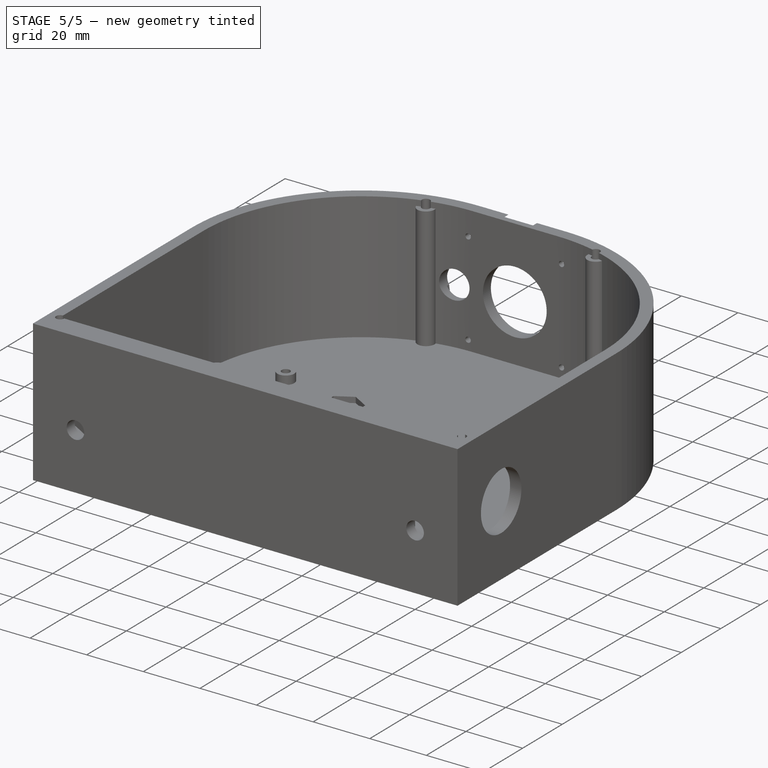
[diagram: stage 5 of 5 — iso view after this stage's code; geometry added in this stage tinted green]
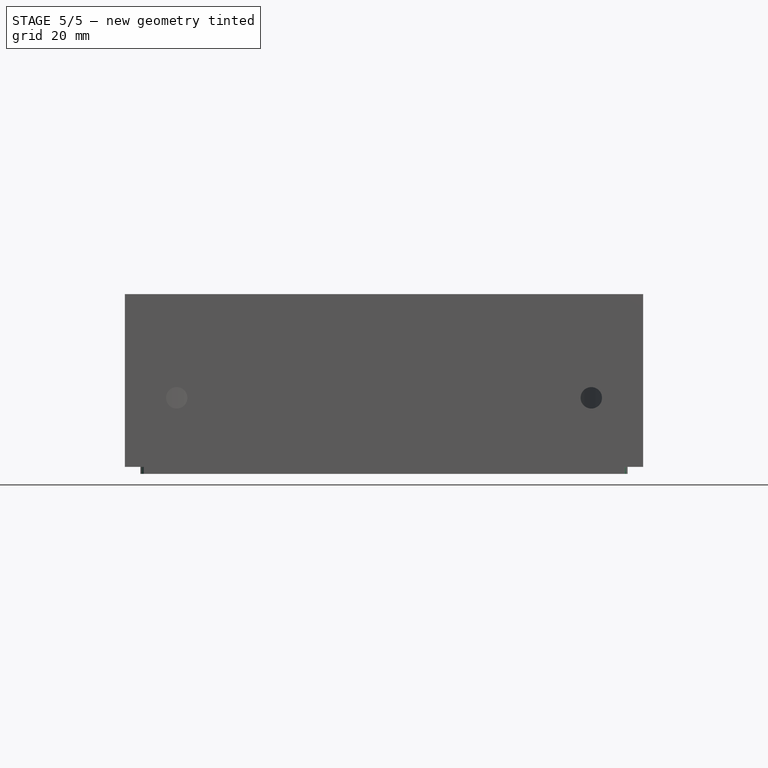
[diagram: stage 5 of 5 — front view after this stage's code; geometry added in this stage tinted green]
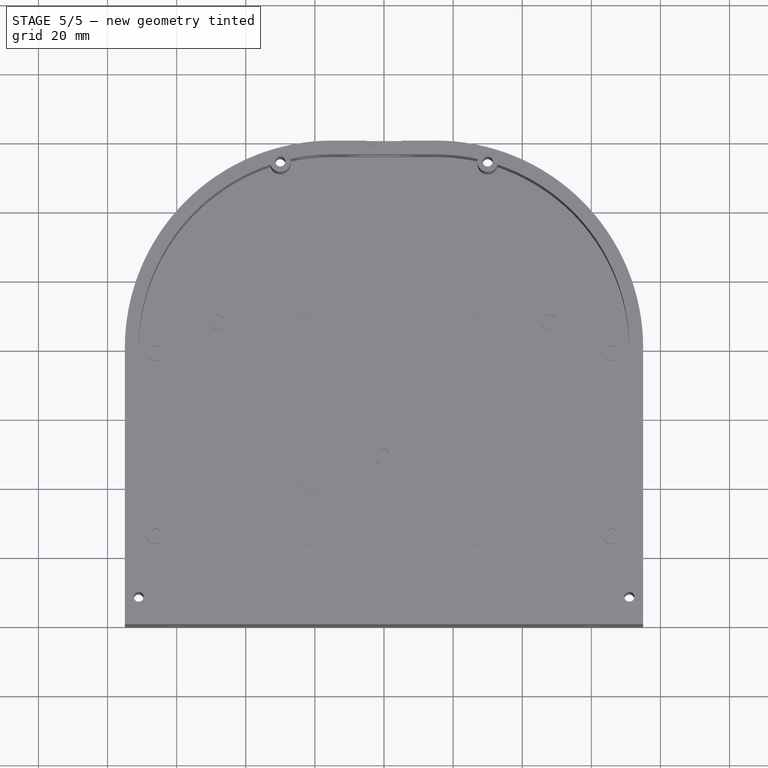
[diagram: stage 5 of 5 — top view after this stage's code; geometry added in this stage tinted green]
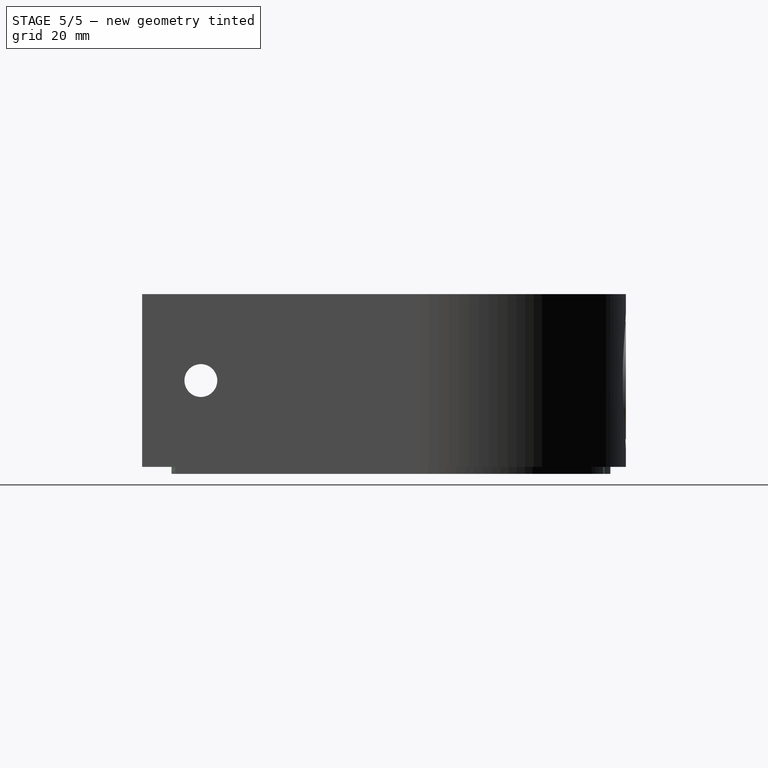
[diagram: stage 5 of 5 — right view after this stage's code; geometry added in this stage tinted green]
FEATURE [Sketcher::SketchObject] Sketch011
  FullyConstrained = true
  MapMode = 5
  Placement = pos=(0,0,3) rot=(0,0,1;0rad)
  Support = -> [Pad003]
  sketch-geometry (4):
    g0: Circle CenterX=-71 CenterY=8 CenterZ=0 NormalX=0 NormalY=0 NormalZ=1 AngleXU=0 Radius=1.6
    g1: Circle CenterX=71 CenterY=8 CenterZ=0 NormalX=0 NormalY=0 NormalZ=1 AngleXU=0 Radius=1.6
    g2: Circle CenterX=-30 CenterY=134 CenterZ=0 NormalX=0 NormalY=0 NormalZ=1 AngleXU=0 Radius=1.6
    g3: Circle CenterX=30 CenterY=134 CenterZ=0 NormalX=0 NormalY=0 NormalZ=1 AngleXU=0 Radius=1.6
  constraints (10):
    c: Symmetric(g0,g1,g-2)
    c: Symmetric(g2,g3,g-2)
    c: DistanceX(g0,g1) = 142
    c: DistanceX(g2,g3) = 60
    c: DistanceY(g-1,g0) = 8
    c: DistanceY(g-1,g2) = 134
    c: Equal(g0,g2)
    c: Equal(g2,g3)
    c: Equal(g0,g1)
    c: Diameter(g0) = 3.2
FEATURE [PartDesign::Pocket] Pocket007
  BaseFeature = -> Pad003
  Direction = (0,0,-1)
  Length = 5
  Length2 = 5
  Profile = -> Sketch011
  ReferenceAxis = -> Sketch011 [N_Axis]
  Type = 1
FEATURE [Sketcher::SketchObject] Sketch012
  FullyConstrained = true
  MapMode = 5
  Placement = pos=(0,0,-2) rot=(1,0,0;3.14159rad)
  Support = -> [Pocket007]
  sketch-geometry (6):
    g0: ArcOfCircle CenterX=-15 CenterY=-80 CenterZ=0 NormalX=0 NormalY=0 NormalZ=1 AngleXU=0 Radius=53.5 StartAngle=3.14159 EndAngle=4.71239
    g1: ArcOfCircle CenterX=15 CenterY=-80 CenterZ=0 NormalX=0 NormalY=0 NormalZ=1 AngleXU=0 Radius=53.5 StartAngle=4.71239 EndAngle=6.28319
    g2: LineSegment StartX=-15 StartY=-133.5 StartZ=0 EndX=15 EndY=-133.5 EndZ=0
    g3: LineSegment StartX=-68.5 StartY=-80 StartZ=0 EndX=-68.5 EndY=-10.5 EndZ=0
    g4: LineSegment StartX=-68.5 StartY=-10.5 StartZ=0 EndX=68.5 EndY=-10.5 EndZ=0
    g5: LineSegment StartX=68.5 StartY=-10.5 StartZ=0 EndX=68.5 EndY=-80 EndZ=0
  constraints (14):
    c: Tangent(g0,g3) = 1.5708
    c: Coincident(g3,g4)
    c: Coincident(g4,g5)
    c: Vertical(g5)
    c: Tangent(g2,g0) = -1.5708
    c: Tangent(g2,g1) = -1.5708
    c: Tangent(g5,g1) = 1.5708
    c: Symmetric(g0,g1,g-2)
    c: Symmetric(g3,g4,g-2)
    c: Equal(g0,g1)
    c: Radius(g0) = 53.5
    c: DistanceY(g4,g-1) = 10.5
    c: DistanceY(g1,g-1) = 133.5
    c: DistanceX(g3,g4) = 137
FEATURE [PartDesign::Pocket] Pocket008
  BaseFeature = -> Pocket007
  Direction = (0,0,1)
  Length = 3
  Length2 = 5
  Profile = -> Sketch012
  ReferenceAxis = -> Sketch012 [N_Axis]
  Type = 0
FEATURE [PartDesign::Chamfer] Chamfer
  Angle = 45
  Base = -> Pocket008 [Edge33,Edge35,Edge36,Edge34]
  BaseFeature = -> Pocket008
  ChamferType = 0
  FlipDirection = false
  Size = 1.6
  Size2 = 1
  SupportTransform = false
  UseAllEdges = false
FEATURE [PartDesign::Chamfer] Chamfer001
  Angle = 45
  Base = -> Chamfer [Edge5,Edge7,Edge3,Edge2,Edge4,Edge6]
  BaseFeature = -> Chamfer
  ChamferType = 0
  FlipDirection = false
  Size = 0.75
  Size2 = 1
  SupportTransform = false
  UseAllEdges = false
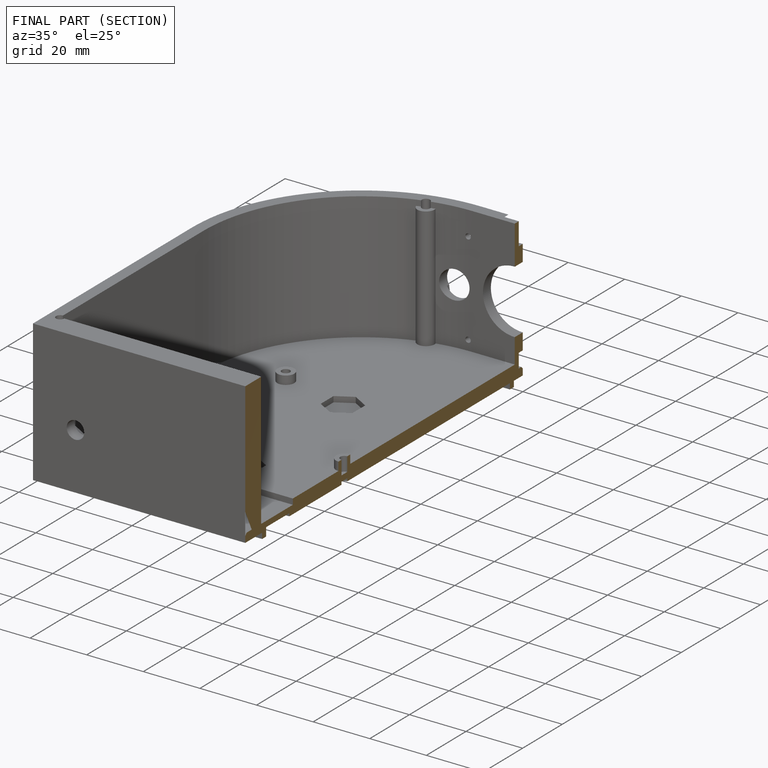
[diagram: finished part — half-section view (interior)]
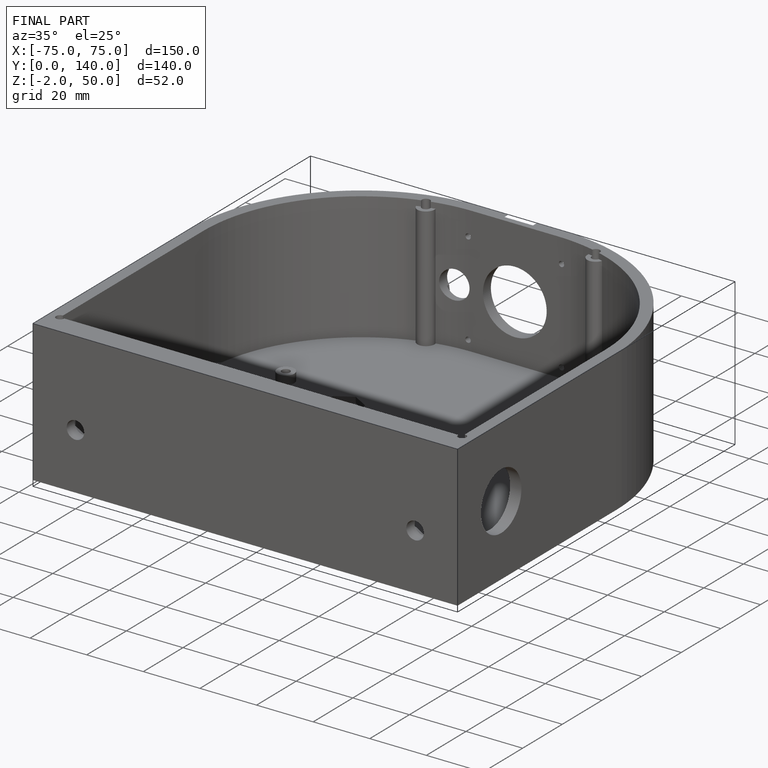
[diagram: finished part — iso view with bounding-box wireframe]
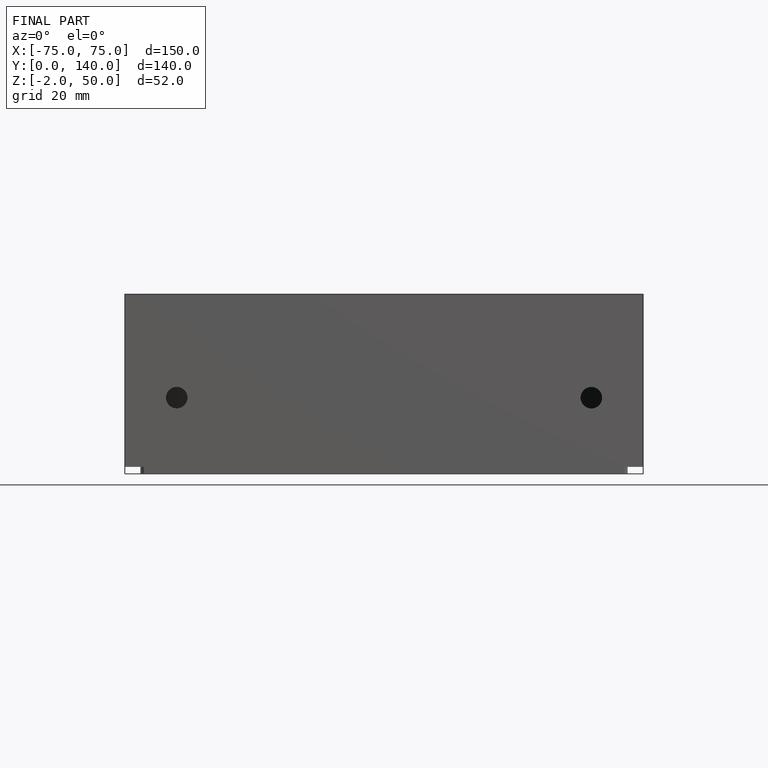
[diagram: finished part — front view with bounding-box wireframe]
